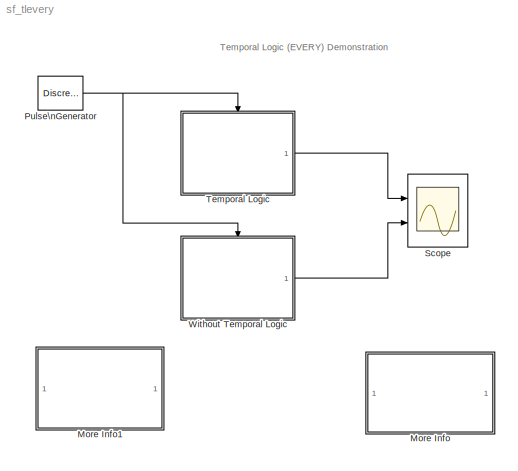
MODEL sf_tlevery
KIND model
BLOCK [SubSystem] More Info
  MaskDisplay = disp('Double click\\nhere for\\ninformation on\\nthis demonstration')
  MaskIconFrame = on
  MaskIconOpaque = on
  MaskIconRotate = none
  MaskIconUnits = autoscale
  MinAlgLoopOccurrences = off
  Ports = []
  PropExecContextAcrossSSBoundary = on
  RTWSystemCode = Auto
  TreatAsAtomicUnit = off
BLOCK [SubSystem] More Info1
  MaskDisplay = disp('Double click\\nhere for<path> Help')
  MaskIconFrame = on
  MaskIconOpaque = on
  MaskIconRotate = none
  MaskIconUnits = autoscale
  MinAlgLoopOccurrences = off
  OpenFcn = simcad(bdroot);
  Ports = []
  PropExecContextAcrossSSBoundary = on
  RTWSystemCode = Auto
  TreatAsAtomicUnit = off
BLOCK [DiscretePulseGenerator] Pulse\nGenerator
  Period = 1
  Ports = [0, 1]
  PulseType = Time based
  PulseWidth = .5
BLOCK [Scope] Scope
  DataFormat = StructureWithTime
  NumInputPorts = 2
  Ports = [2]
  TimeRange = 100
  YMax = 40~40
  YMin = -5~-5
  ZoomMode = yonly
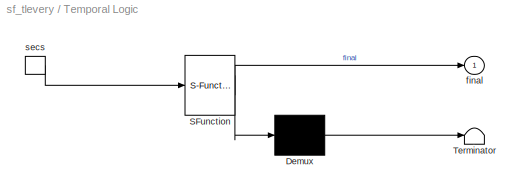
BLOCK [SubSystem] Temporal Logic
  MaskDescription = Stateflow diagram
  MaskDisplay = plot(sf('Private','sfblk','xIcon'),sf('Private','sfblk','yIcon'));text(0.5,0,sf('Private', 'sfblk', 'tIcon'),'HorizontalAl','Center','VerticalAl','Bottom');
  MaskIconFrame = off
  MaskIconOpaque = off
  MaskIconRotate = none
  MaskIconUnits = autoscale
  MaskSelfModifiable = on
  MaskType = Stateflow
  MinAlgLoopOccurrences = off
  Ports = [0, 1, 0, 1]
  PropExecContextAcrossSSBoundary = on
  RTWSystemCode = Auto
  TreatAsAtomicUnit = on
BLOCK [Demux] Temporal Logic/ Demux 
  Outputs = 1
  Ports = [1, 1]
BLOCK [S-Function] Temporal Logic/ SFunction 
  FunctionName = sf_sfun
  PortCounts = [1 2]
  Ports = [1, 2]
  Tag = Stateflow S-Function sf_tlevery 2
BLOCK [Terminator] Temporal Logic/ Terminator 
BLOCK [Outport] Temporal Logic/final
  IconDisplay = Port number
BLOCK [TriggerPort] Temporal Logic/secs
  Ports = [0, 1]
  ShowOutputPort = on
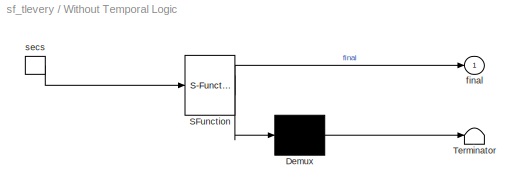
BLOCK [SubSystem] Without Temporal Logic
  MaskDescription = Stateflow diagram
  MaskDisplay = plot(sf('Private','sfblk','xIcon'),sf('Private','sfblk','yIcon'));text(0.5,0,sf('Private', 'sfblk', 'tIcon'),'HorizontalAl','Center','VerticalAl','Bottom');
  MaskIconFrame = off
  MaskIconOpaque = off
  MaskIconRotate = none
  MaskIconUnits = autoscale
  MaskSelfModifiable = on
  MaskType = Stateflow
  MinAlgLoopOccurrences = off
  Ports = [0, 1, 0, 1]
  PropExecContextAcrossSSBoundary = on
  RTWSystemCode = Auto
  TreatAsAtomicUnit = on
BLOCK [Demux] Without Temporal Logic/ Demux 
  Outputs = 1
  Ports = [1, 1]
BLOCK [S-Function] Without Temporal Logic/ SFunction 
  FunctionName = sf_sfun
  PortCounts = [1 2]
  Ports = [1, 2]
  Tag = Stateflow S-Function sf_tlevery 1
BLOCK [Terminator] Without Temporal Logic/ Terminator 
BLOCK [Outport] Without Temporal Logic/final
  IconDisplay = Port number
BLOCK [TriggerPort] Without Temporal Logic/secs
  Ports = [0, 1]
  ShowOutputPort = on
ANNOTATION (root): Temporal Logic (EVERY) Demonstration\n
ANNOTATION More Info: Temporal Logic using the EVERY function
ANNOTATION More Info: This demonstration illustrates the advantage of using the EVERY function to call a graphical function when \ncertain events occur. Notice how complicated it becomes when you try to accomplish the same behavior \nwithout the use of temporal logic functions. \n\nIn the Temporal Logic chart, we specify that every 5 secs (events), we will add one to the local variable\n'count'. We then say that every ...<+648ch>
ANNOTATION More Info: \n
NET Pulse\nGenerator:1 -> Temporal Logic:trigger, Without Temporal Logic:trigger
LINE Temporal Logic/ Demux :1 -> Temporal Logic/ Terminator :1
LINE Temporal Logic/ SFunction :1 -> Temporal Logic/ Demux :1
LINE Temporal Logic/ SFunction :2 -> Temporal Logic/final:1
LINE Temporal Logic/secs:1 -> Temporal Logic/ SFunction :1
LINE Temporal Logic:1 -> Scope:1
LINE Without Temporal Logic/ Demux :1 -> Without Temporal Logic/ Terminator :1
LINE Without Temporal Logic/ SFunction :1 -> Without Temporal Logic/ Demux :1
LINE Without Temporal Logic/ SFunction :2 -> Without Temporal Logic/final:1
LINE Without Temporal Logic/secs:1 -> Without Temporal Logic/ SFunction :1
LINE Without Temporal Logic:1 -> Scope:2
note: NET lines group one-source signal fan-out (src -> all destinations, sorted); 1:1 wires keep LINE
CHART Without Temporal Logic states=9 transitions=8
  STATE_LABEL 'A'
  STATE_LABEL 'Counter'
  STATE_LABEL 'One\\ncount=1;'
  STATE_LABEL 'State'
  STATE_LABEL 'output = double_counter(input)'
  STATE_LABEL 'State_two'
  STATE_LABEL 'B'
  STATE_LABEL 'Counter_two'
  STATE_LABEL 'Two\\nn=1;'
CHART Temporal Logic states=2 transitions=2
  STATE_LABEL 'output = double_counter(input)'
  STATE_LABEL 'Active\\n\\non every(5,secs): count++;\\non every(10,secs):final=double_counter(count);'
note: 1 file-system path scrubbed to <path> (not preserved elsewhere — flat text is the only slx artifact)
